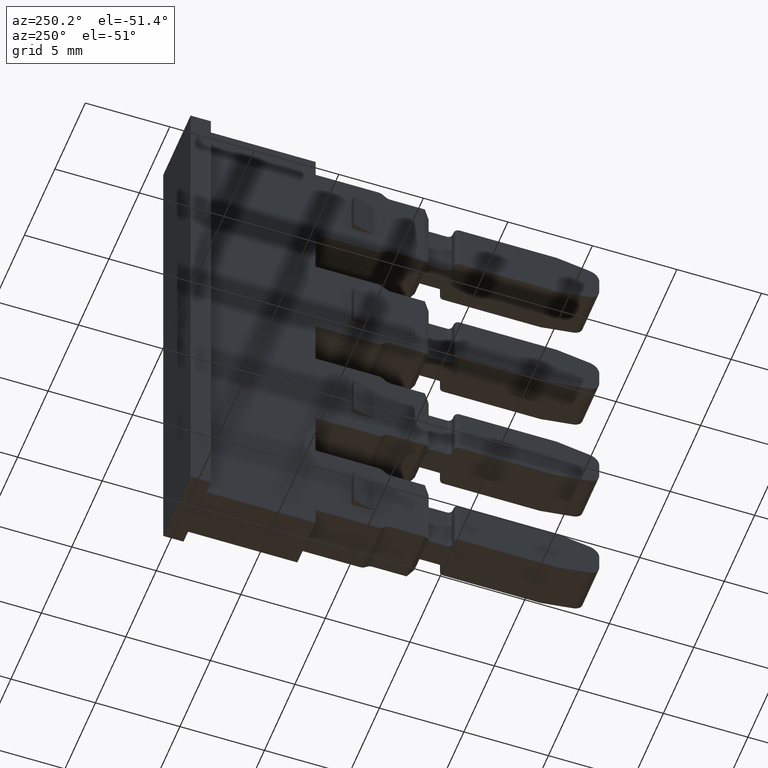
[diagram: clean part render]
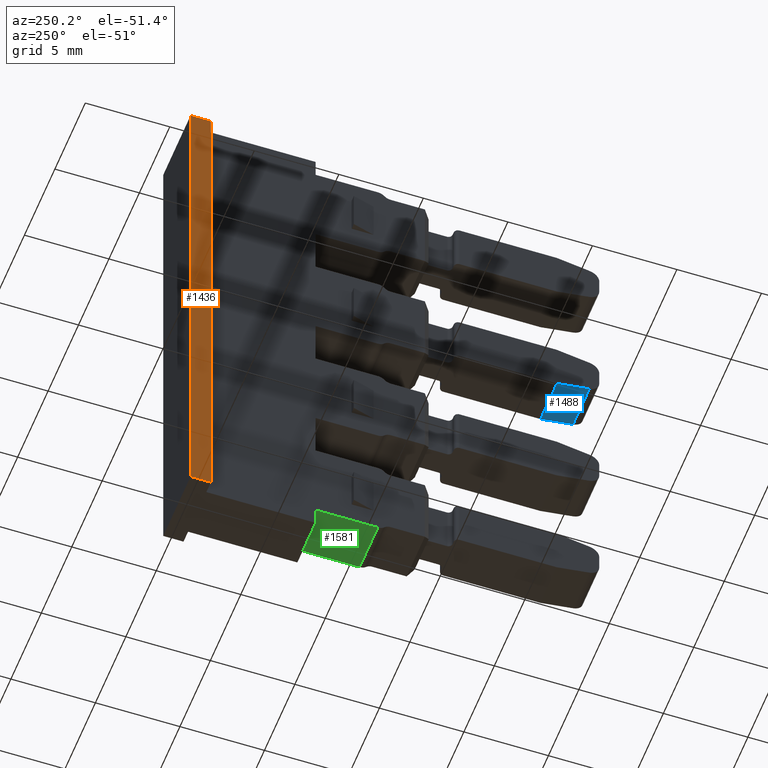
[diagram: same view with three faces highlighted in distinct colors, each labeled with its STEP entity id]
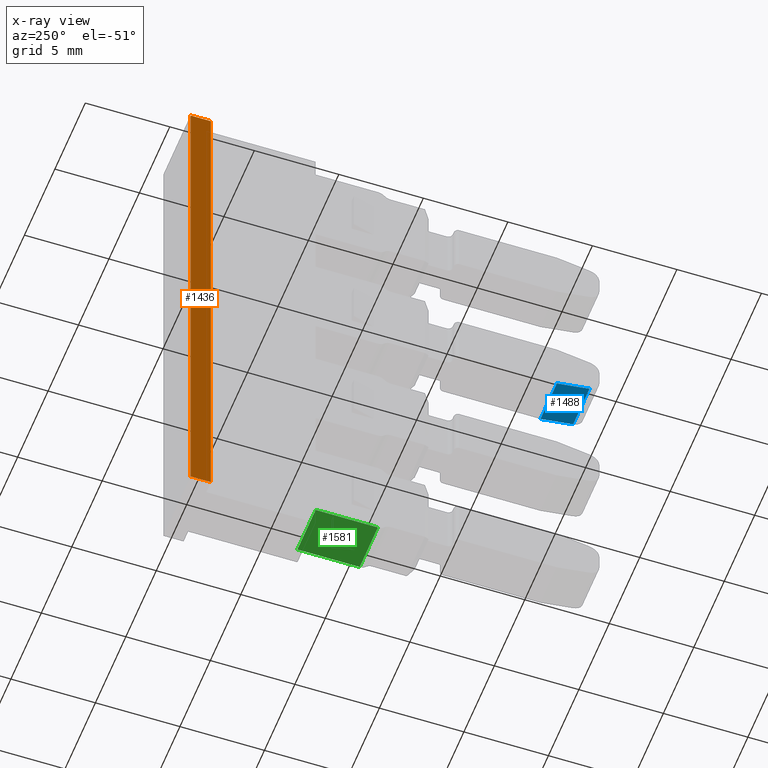
[diagram: x-ray of the same camera — body ghosted, the three highlighted faces saturated]
A machine part, auxiliary view with three faces highlighted in distinct colors.
The next image is the same camera in x-ray (body ghosted, the three faces saturated) — at least one of them is partly hidden behind the body in this view.
Their STEP definitions:

[orange] entity #1436 — the highlighted planar face has unit normal (-1, 0, -0).
#136 = EDGE_LOOP ( 'NONE', ( #1895, #1881, #1885, #1884 ) ) ;
#402 = VERTEX_POINT ( 'NONE', #2402 ) ;
#413 = VERTEX_POINT ( 'NONE', #2382 ) ;
#445 = VERTEX_POINT ( 'NONE', #2394 ) ;
#447 = VERTEX_POINT ( 'NONE', #2417 ) ;
#959 = EDGE_CURVE ( 'NONE', #402, #413, #2476, .T. ) ;
#987 = EDGE_CURVE ( 'NONE', #445, #447, #2600, .T. ) ;
#1011 = EDGE_CURVE ( 'NONE', #445, #413, #2685, .T. ) ;
#1063 = EDGE_CURVE ( 'NONE', #447, #402, #1629, .T. ) ;
#1436 = ADVANCED_FACE ( 'NONE', ( #5069 ), #5058, .T. ) ;
#1624 = DIRECTION ( 'NONE',  ( -7.847720069483336500E-029, 2.968510761029624900E-015, -1.000000000000000000 ) ) ;
#1629 = LINE ( 'NONE', #1630, #3044 ) ;
#1630 = CARTESIAN_POINT ( 'NONE',  ( 108.4952529172782200, 260.3101602476013500, 228.6398226793851100 ) ) ;
#1881 = ORIENTED_EDGE ( 'NONE', *, *, #987, .T. ) ;
#1884 = ORIENTED_EDGE ( 'NONE', *, *, #959, .T. ) ;
#1885 = ORIENTED_EDGE ( 'NONE', *, *, #1063, .T. ) ;
#1895 = ORIENTED_EDGE ( 'NONE', *, *, #1011, .F. ) ;
#2382 = CARTESIAN_POINT ( 'NONE',  ( 108.4952529172783100, 259.1101602476018700, 140.8398226793859700 ) ) ;
#2394 = CARTESIAN_POINT ( 'NONE',  ( 108.4952529172782200, 259.1101602476019800, 173.0398226793859900 ) ) ;
#2402 = CARTESIAN_POINT ( 'NONE',  ( 108.4952529172783100, 260.3101602476014600, 140.8398226793859700 ) ) ;
#2417 = CARTESIAN_POINT ( 'NONE',  ( 108.4952529172782200, 260.3101602476015700, 173.0398226793859900 ) ) ;
#2476 = LINE ( 'NONE', #2501, #2909 ) ;
#2497 = DIRECTION ( 'NONE',  ( -0.0000000000000000000, -1.000000000000000000, -0.0000000000000000000 ) ) ;
#2501 = CARTESIAN_POINT ( 'NONE',  ( 108.4952529172783400, 259.1101602476018700, 140.8398226793859700 ) ) ;
#2592 = DIRECTION ( 'NONE',  ( 0.0000000000000000000, 1.000000000000000000, 0.0000000000000000000 ) ) ;
#2600 = LINE ( 'NONE', #2603, #2959 ) ;
#2603 = CARTESIAN_POINT ( 'NONE',  ( 108.4952529172782200, 259.1101602476019800, 173.0398226793859900 ) ) ;
#2650 = DIRECTION ( 'NONE',  ( 0.0000000000000000000, -1.944757394685670000E-028, -1.000000000000000000 ) ) ;
#2685 = LINE ( 'NONE', #2689, #2984 ) ;
#2689 = CARTESIAN_POINT ( 'NONE',  ( 108.4952529172782200, 259.1101602476019300, 193.7370111674605100 ) ) ;
#2909 = VECTOR ( 'NONE', #2497, 1000.000000000000000 ) ;
#2959 = VECTOR ( 'NONE', #2592, 1000.000000000000000 ) ;
#2984 = VECTOR ( 'NONE', #2650, 1000.000000000000000 ) ;
#3044 = VECTOR ( 'NONE', #1624, 1000.000000000000000 ) ;
#3468 = AXIS2_PLACEMENT_3D ( 'NONE', #5085, #5088, #5106 ) ;
#5058 = PLANE ( 'NONE',  #3468 ) ;
#5069 = FACE_OUTER_BOUND ( 'NONE', #136, .T. ) ;
#5085 = CARTESIAN_POINT ( 'NONE',  ( 108.4952529172783400, 259.1101602476019300, 149.0398226793859900 ) ) ;
#5088 = DIRECTION ( 'NONE',  ( -1.000000000000000000, 0.0000000000000000000, -7.026728003956671600E-015 ) ) ;
#5106 = DIRECTION ( 'NONE',  ( -7.026728003956671600E-015, 0.0000000000000000000, 1.000000000000000000 ) ) ;

[blue] entity #1488 — the highlighted planar face has unit normal (-0, 0.1736, 0.9848).
#184 = EDGE_LOOP ( 'NONE', ( #2123, #513, #549, #482 ) ) ;
#294 = VERTEX_POINT ( 'NONE', #2253 ) ;
#325 = VERTEX_POINT ( 'NONE', #2248 ) ;
#327 = VERTEX_POINT ( 'NONE', #2342 ) ;
#328 = VERTEX_POINT ( 'NONE', #2329 ) ;
#482 = ORIENTED_EDGE ( 'NONE', *, *, #1209, .F. ) ;
#513 = ORIENTED_EDGE ( 'NONE', *, *, #1157, .F. ) ;
#549 = ORIENTED_EDGE ( 'NONE', *, *, #1174, .T. ) ;
#1157 = EDGE_CURVE ( 'NONE', #325, #294, #3712, .T. ) ;
#1174 = EDGE_CURVE ( 'NONE', #325, #327, #3781, .T. ) ;
#1209 = EDGE_CURVE ( 'NONE', #328, #327, #3907, .T. ) ;
#1257 = EDGE_CURVE ( 'NONE', #328, #294, #4048, .T. ) ;
#1488 = ADVANCED_FACE ( 'NONE', ( #5351 ), #5334, .F. ) ;
#2123 = ORIENTED_EDGE ( 'NONE', *, *, #1257, .T. ) ;
#2248 = CARTESIAN_POINT ( 'NONE',  ( 109.4024523974272500, 236.3853528084943300, 159.8798047026398000 ) ) ;
#2253 = CARTESIAN_POINT ( 'NONE',  ( 112.0980534371292900, 236.3853528084943600, 159.8798047026398600 ) ) ;
#2329 = CARTESIAN_POINT ( 'NONE',  ( 112.0980534371293500, 238.3134866759718300, 159.5398226793861100 ) ) ;
#2342 = CARTESIAN_POINT ( 'NONE',  ( 109.4024523974270400, 238.3134866759714900, 159.5398226793860500 ) ) ;
#2790 = AXIS2_PLACEMENT_3D ( 'NONE', #5360, #5355, #5353 ) ;
#3148 = VECTOR ( 'NONE', #3732, 1000.000000000000000 ) ;
#3160 = VECTOR ( 'NONE', #3756, 1000.000000000000000 ) ;
#3190 = VECTOR ( 'NONE', #3880, 1000.000000000000000 ) ;
#3266 = VECTOR ( 'NONE', #4052, 1000.000000000000100 ) ;
#3707 = CARTESIAN_POINT ( 'NONE',  ( 100.4203046668918700, 236.3853528084942800, 159.8798047026397200 ) ) ;
#3712 = LINE ( 'NONE', #3707, #3148 ) ;
#3732 = DIRECTION ( 'NONE',  ( 1.000000000000000000, 2.027333134354696000E-015, 1.149757754718231300E-014 ) ) ;
#3756 = DIRECTION ( 'NONE',  ( -8.505811712551570700E-014, 0.9848077530122383300, -0.1736481776667590000 ) ) ;
#3781 = LINE ( 'NONE', #3782, #3160 ) ;
#3782 = CARTESIAN_POINT ( 'NONE',  ( 109.4024523974272100, 236.3853528084943000, 159.8798047026398000 ) ) ;
#3880 = DIRECTION ( 'NONE',  ( -1.000000000000000000, -2.027333134354696000E-015, -1.149757754718231300E-014 ) ) ;
#3886 = CARTESIAN_POINT ( 'NONE',  ( 100.4203046668918700, 238.3134866759714600, 159.5398226793859400 ) ) ;
#3907 = LINE ( 'NONE', #3886, #3190 ) ;
#4031 = CARTESIAN_POINT ( 'NONE',  ( 112.0980534371293700, 238.3134866759715200, 159.5398226793861900 ) ) ;
#4048 = LINE ( 'NONE', #4031, #3266 ) ;
#4052 = DIRECTION ( 'NONE',  ( -3.544088213562839200E-014, -0.9848077530122358900, 0.1736481776667719300 ) ) ;
#5334 = PLANE ( 'NONE',  #2790 ) ;
#5351 = FACE_OUTER_BOUND ( 'NONE', #184, .T. ) ;
#5353 = DIRECTION ( 'NONE',  ( 0.0000000000000000000, -0.9848077530122285600, 0.1736481776668140600 ) ) ;
#5355 = DIRECTION ( 'NONE',  ( -1.167494621362871000E-014, 0.1736481776668140900, 0.9848077530122286700 ) ) ;
#5360 = CARTESIAN_POINT ( 'NONE',  ( 100.4203046668918700, 238.3134866759710300, 159.5398226793860200 ) ) ;

[green] entity #1581 — the highlighted planar face has unit normal (-0, 0, 1).
#1 = ORIENTED_EDGE ( 'NONE', *, *, #1356, .F. ) ;
#2 = ORIENTED_EDGE ( 'NONE', *, *, #1086, .F. ) ;
#3 = ORIENTED_EDGE ( 'NONE', *, *, #1032, .F. ) ;
#61 = EDGE_LOOP ( 'NONE', ( #2, #1, #3, #1777 ) ) ;
#166 = VERTEX_POINT ( 'NONE', #2156 ) ;
#168 = VERTEX_POINT ( 'NONE', #2160 ) ;
#282 = VERTEX_POINT ( 'NONE', #2275 ) ;
#337 = VERTEX_POINT ( 'NONE', #2332 ) ;
#1032 = EDGE_CURVE ( 'NONE', #168, #166, #2735, .T. ) ;
#1086 = EDGE_CURVE ( 'NONE', #282, #337, #4473, .T. ) ;
#1356 = EDGE_CURVE ( 'NONE', #166, #282, #4332, .T. ) ;
#1378 = EDGE_CURVE ( 'NONE', #337, #168, #4397, .T. ) ;
#1581 = ADVANCED_FACE ( 'NONE', ( #4836 ), #4849, .F. ) ;
#1777 = ORIENTED_EDGE ( 'NONE', *, *, #1378, .F. ) ;
#2156 = CARTESIAN_POINT ( 'NONE',  ( 109.2452529172786600, 248.9601602476018300, 141.9898226793859800 ) ) ;
#2160 = CARTESIAN_POINT ( 'NONE',  ( 109.2452529172785900, 252.6435672046368700, 141.9898226793859800 ) ) ;
#2275 = CARTESIAN_POINT ( 'NONE',  ( 112.2452529172787200, 248.9601602476018600, 141.9898226793860100 ) ) ;
#2332 = CARTESIAN_POINT ( 'NONE',  ( 112.2452529172786200, 252.6435672046368700, 141.9898226793860100 ) ) ;
#2733 = CARTESIAN_POINT ( 'NONE',  ( 109.2452529172785900, 252.6101602476013600, 141.9898226793859800 ) ) ;
#2735 = LINE ( 'NONE', #2733, #2991 ) ;
#2737 = DIRECTION ( 'NONE',  ( -1.389949779553693200E-042, -1.000000000000000000, 1.932210572784515100E-028 ) ) ;
#2876 = AXIS2_PLACEMENT_3D ( 'NONE', #4840, #4833, #4837 ) ;
#2991 = VECTOR ( 'NONE', #2737, 1000.000000000000000 ) ;
#3102 = VECTOR ( 'NONE', #4480, 1000.000000000000000 ) ;
#3358 = VECTOR ( 'NONE', #4321, 1000.000000000000000 ) ;
#3437 = VECTOR ( 'NONE', #4387, 1000.000000000000000 ) ;
#4321 = DIRECTION ( 'NONE',  ( 1.000000000000000000, 0.0000000000000000000, 7.193572994224081300E-015 ) ) ;
#4332 = LINE ( 'NONE', #4335, #3358 ) ;
#4335 = CARTESIAN_POINT ( 'NONE',  ( 112.2452529172789900, 248.9601602476018600, 141.9898226793860100 ) ) ;
#4387 = DIRECTION ( 'NONE',  ( -1.000000000000000000, -0.0000000000000000000, -7.193572994224081300E-015 ) ) ;
#4397 = LINE ( 'NONE', #4419, #3437 ) ;
#4419 = CARTESIAN_POINT ( 'NONE',  ( 112.2452529172789900, 252.6435672046368700, 141.9898226793860100 ) ) ;
#4473 = LINE ( 'NONE', #4479, #3102 ) ;
#4479 = CARTESIAN_POINT ( 'NONE',  ( 112.2452529172787100, 249.5101602476013900, 141.9898226793860100 ) ) ;
#4480 = DIRECTION ( 'NONE',  ( -2.643655590711540000E-014, 1.000000000000000000, 0.0000000000000000000 ) ) ;
#4833 = DIRECTION ( 'NONE',  ( -7.193572994224081300E-015, 1.932210572784515100E-028, 1.000000000000000000 ) ) ;
#4836 = FACE_OUTER_BOUND ( 'NONE', #61, .T. ) ;
#4837 = DIRECTION ( 'NONE',  ( 1.000000000000000000, 0.0000000000000000000, 7.193572994224081300E-015 ) ) ;
#4840 = CARTESIAN_POINT ( 'NONE',  ( 112.2452529172789900, 252.6101602476013600, 141.9898226793860100 ) ) ;
#4849 = PLANE ( 'NONE',  #2876 ) ;